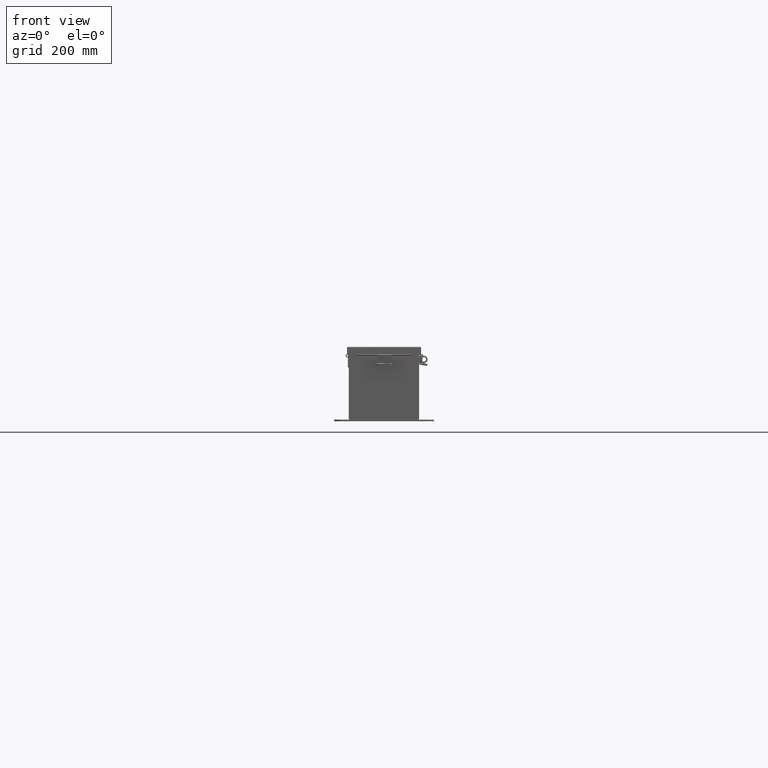
[diagram: clean part render]
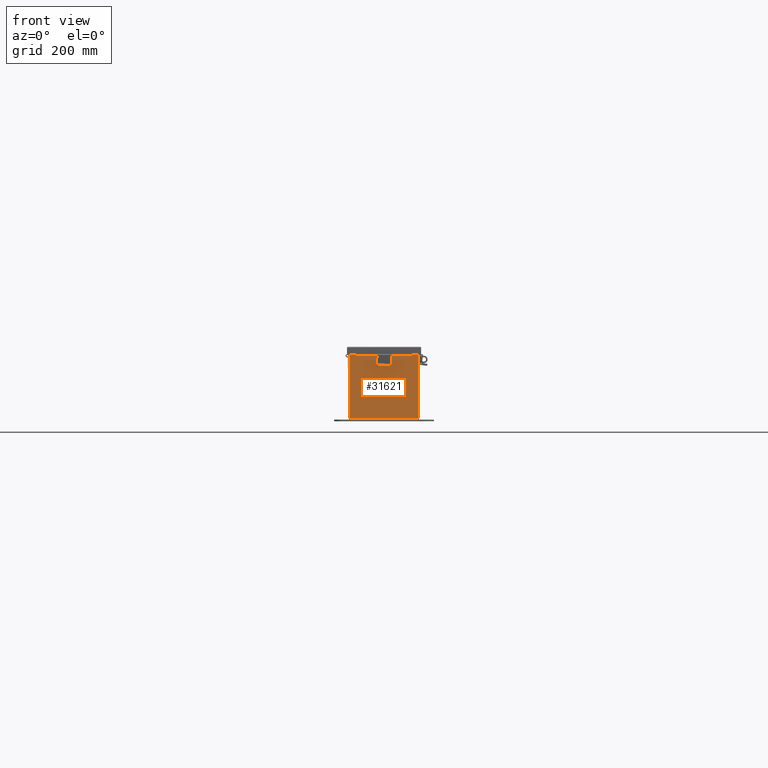
[diagram: same view with one face highlighted and labeled with its STEP entity id]
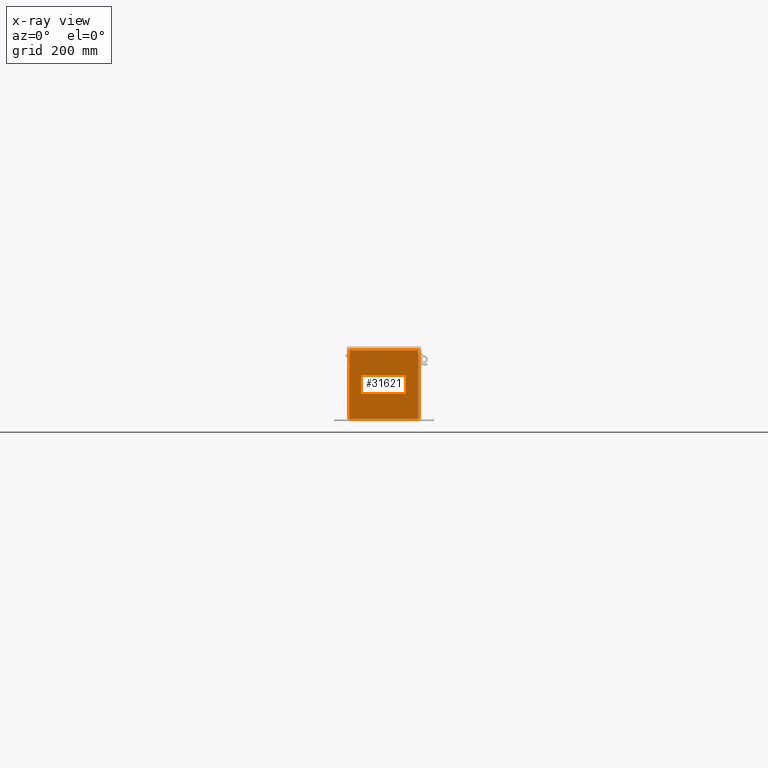
[diagram: x-ray of the same camera — body ghosted, the highlighted face saturated]
A machine part, front view. The second image highlights one B-rep face of the part: STEP entity #31621.
The next image is the same camera in x-ray: the body ghosted, the highlighted face saturated — about 0% of this face is hidden behind the body in this view.
In plain terms, the highlighted planar face has unit normal (-0, 1, -0).
Its self-contained STEP definition (entity closure, byte-faithful):
#105 = DIRECTION ( 'NONE',  ( 0.0000000000000000000, 0.0000000000000000000, -1.000000000000000000 ) ) ;
#489 = DIRECTION ( 'NONE',  ( 1.000000000000000000, 1.230560758958866800E-030, -0.0000000000000000000 ) ) ;
#1025 = LINE ( 'NONE', #30534, #16711 ) ;
#1444 = DIRECTION ( 'NONE',  ( -1.000000000000000000, -1.230560758958866800E-030, 0.0000000000000000000 ) ) ;
#1873 = CARTESIAN_POINT ( 'NONE',  ( 2.619649999999976500, 0.0000000000000000000, -2.895758873284118700E-014 ) ) ;
#2327 = DIRECTION ( 'NONE',  ( -1.230560758958866800E-030, -1.000000000000000000, -0.0000000000000000000 ) ) ;
#3090 = VERTEX_POINT ( 'NONE', #13459 ) ;
#3721 = VERTEX_POINT ( 'NONE', #21673 ) ;
#4574 = LINE ( 'NONE', #18095, #21306 ) ;
#5140 = CARTESIAN_POINT ( 'NONE',  ( 2.619650000000007600, 8.741913579725642300E-014, 2.925300000000001300 ) ) ;
#5399 = DIRECTION ( 'NONE',  ( 1.000000000000000000, 1.230560758958866800E-030, 0.0000000000000000000 ) ) ;
#5593 = CARTESIAN_POINT ( 'NONE',  ( -2.619649999999992500, 8.741913579725642300E-014, 2.925299999999999100 ) ) ;
#5642 = LINE ( 'NONE', #22097, #13494 ) ;
#5880 = EDGE_CURVE ( 'NONE', #32629, #25516, #28270, .T. ) ;
#6480 = CARTESIAN_POINT ( 'NONE',  ( 2.582300000000007600, 0.0000000000000000000, -1.092739197465705300E-014 ) ) ;
#7765 = ORIENTED_EDGE ( 'NONE', *, *, #16394, .T. ) ;
#8924 = CARTESIAN_POINT ( 'NONE',  ( 2.925299999999996900, 8.741913579725642300E-014, -2.925300000000011600 ) ) ;
#9169 = ORIENTED_EDGE ( 'NONE', *, *, #24537, .T. ) ;
#10699 = ORIENTED_EDGE ( 'NONE', *, *, #12179, .F. ) ;
#10935 = VERTEX_POINT ( 'NONE', #13122 ) ;
#11571 = VECTOR ( 'NONE', #489, 39.37007874015748100 ) ;
#12179 = EDGE_CURVE ( 'NONE', #22122, #10935, #40175, .T. ) ;
#12230 = PLANE ( 'NONE',  #20106 ) ;
#12293 = VECTOR ( 'NONE', #43339, 39.37007874015748100 ) ;
#13122 = CARTESIAN_POINT ( 'NONE',  ( -2.582299999999992500, 8.741913579725642300E-014, 2.874949999999998800 ) ) ;
#13459 = CARTESIAN_POINT ( 'NONE',  ( -2.619649999999992500, 8.741913579725642300E-014, 2.874949999999997900 ) ) ;
#13494 = VECTOR ( 'NONE', #5399, 39.37007874015748100 ) ;
#13781 = DIRECTION ( 'NONE',  ( 0.0000000000000000000, 0.0000000000000000000, 1.000000000000000000 ) ) ;
#14990 = ORIENTED_EDGE ( 'NONE', *, *, #23979, .T. ) ;
#15096 = LINE ( 'NONE', #1873, #24024 ) ;
#15639 = EDGE_CURVE ( 'NONE', #26326, #33950, #23633, .T. ) ;
#16290 = CARTESIAN_POINT ( 'NONE',  ( 2.600975000000007600, 8.741913579725642300E-014, 2.874949999999998800 ) ) ;
#16361 = VECTOR ( 'NONE', #41230, 39.37007874015748100 ) ;
#16394 = EDGE_CURVE ( 'NONE', #22122, #25221, #30485, .T. ) ;
#16711 = VECTOR ( 'NONE', #13781, 39.37007874015748100 ) ;
#17808 = CARTESIAN_POINT ( 'NONE',  ( 2.925300000000007600, 8.741913579725642300E-014, 2.925300000000000000 ) ) ;
#18095 = CARTESIAN_POINT ( 'NONE',  ( -2.925300000000003600, 0.0000000000000000000, -2.925300000000000500 ) ) ;
#18690 = CIRCLE ( 'NONE', #20870, 0.01867500000000003900 ) ;
#18989 = CARTESIAN_POINT ( 'NONE',  ( 0.0000000000000000000, 0.0000000000000000000, 0.0000000000000000000 ) ) ;
#19344 = VECTOR ( 'NONE', #39545, 39.37007874015748100 ) ;
#19667 = DIRECTION ( 'NONE',  ( 0.0000000000000000000, 0.0000000000000000000, -1.000000000000000000 ) ) ;
#20076 = EDGE_CURVE ( 'NONE', #33950, #25221, #22258, .T. ) ;
#20106 = AXIS2_PLACEMENT_3D ( 'NONE', #18989, #2327, #25730 ) ;
#20135 = DIRECTION ( 'NONE',  ( 1.230560758958866800E-030, 1.000000000000000000, -0.0000000000000000000 ) ) ;
#20517 = CARTESIAN_POINT ( 'NONE',  ( -2.582299999999992500, 8.741913579725642300E-014, 2.912299999999998800 ) ) ;
#20870 = AXIS2_PLACEMENT_3D ( 'NONE', #40173, #20135, #105 ) ;
#21013 = ORIENTED_EDGE ( 'NONE', *, *, #5880, .T. ) ;
#21306 = VECTOR ( 'NONE', #1444, 39.37007874015748100 ) ;
#21376 = EDGE_LOOP ( 'NONE', ( #43291, #21874, #10699, #7765, #33607, #34084, #39211, #21013, #21766, #24886, #14990, #9169 ) ) ;
#21673 = CARTESIAN_POINT ( 'NONE',  ( -2.925300000000003600, 0.0000000000000000000, -2.925300000000000500 ) ) ;
#21766 = ORIENTED_EDGE ( 'NONE', *, *, #31419, .T. ) ;
#21869 = DIRECTION ( 'NONE',  ( -1.085143195099989400E-014, 0.0000000000000000000, -1.000000000000000000 ) ) ;
#21874 = ORIENTED_EDGE ( 'NONE', *, *, #29095, .F. ) ;
#22097 = CARTESIAN_POINT ( 'NONE',  ( -2.925299999999992500, 0.0000000000000000000, 2.925300000000000000 ) ) ;
#22122 = VERTEX_POINT ( 'NONE', #33294 ) ;
#22258 = LINE ( 'NONE', #6480, #12293 ) ;
#22544 = VERTEX_POINT ( 'NONE', #8924 ) ;
#22561 = DIRECTION ( 'NONE',  ( 0.0000000000000000000, 0.0000000000000000000, 1.000000000000000000 ) ) ;
#22684 = VERTEX_POINT ( 'NONE', #36442 ) ;
#23633 = CIRCLE ( 'NONE', #29953, 0.01867500000000003900 ) ;
#23979 = EDGE_CURVE ( 'NONE', #3721, #22684, #1025, .T. ) ;
#24024 = VECTOR ( 'NONE', #21869, 39.37007874015748100 ) ;
#24537 = EDGE_CURVE ( 'NONE', #22684, #37604, #5642, .T. ) ;
#24886 = ORIENTED_EDGE ( 'NONE', *, *, #25027, .T. ) ;
#25027 = EDGE_CURVE ( 'NONE', #22544, #3721, #4574, .T. ) ;
#25221 = VERTEX_POINT ( 'NONE', #25869 ) ;
#25298 = LINE ( 'NONE', #17808, #16361 ) ;
#25516 = VERTEX_POINT ( 'NONE', #41306 ) ;
#25730 = DIRECTION ( 'NONE',  ( 0.0000000000000000000, 0.0000000000000000000, -1.000000000000000000 ) ) ;
#25801 = FACE_OUTER_BOUND ( 'NONE', #21376, .T. ) ;
#25869 = CARTESIAN_POINT ( 'NONE',  ( 2.582300000000007600, 8.741913579725642300E-014, 2.912299999999998800 ) ) ;
#26326 = VERTEX_POINT ( 'NONE', #35436 ) ;
#26670 = CARTESIAN_POINT ( 'NONE',  ( -2.582299999999992500, 0.0000000000000000000, 0.0000000000000000000 ) ) ;
#28270 = LINE ( 'NONE', #36182, #19344 ) ;
#29095 = EDGE_CURVE ( 'NONE', #10935, #3090, #18690, .T. ) ;
#29595 = EDGE_CURVE ( 'NONE', #3090, #37604, #34352, .T. ) ;
#29953 = AXIS2_PLACEMENT_3D ( 'NONE', #16290, #39707, #19667 ) ;
#30485 = LINE ( 'NONE', #20517, #11571 ) ;
#30534 = CARTESIAN_POINT ( 'NONE',  ( -2.925299999999992500, 0.0000000000000000000, 2.925300000000000000 ) ) ;
#31331 = VECTOR ( 'NONE', #36909, 39.37007874015748100 ) ;
#31419 = EDGE_CURVE ( 'NONE', #25516, #22544, #25298, .T. ) ;
#31621 = ADVANCED_FACE ( 'NONE', ( #25801 ), #12230, .F. ) ;
#32629 = VERTEX_POINT ( 'NONE', #5140 ) ;
#33294 = CARTESIAN_POINT ( 'NONE',  ( -2.582299999999992500, 8.741913579725642300E-014, 2.912299999999998800 ) ) ;
#33607 = ORIENTED_EDGE ( 'NONE', *, *, #20076, .F. ) ;
#33950 = VERTEX_POINT ( 'NONE', #40203 ) ;
#34084 = ORIENTED_EDGE ( 'NONE', *, *, #15639, .F. ) ;
#34352 = LINE ( 'NONE', #42576, #42156 ) ;
#35436 = CARTESIAN_POINT ( 'NONE',  ( 2.619650000000007600, 8.741913579725642300E-014, 2.874949999999999700 ) ) ;
#36182 = CARTESIAN_POINT ( 'NONE',  ( -2.925299999999992500, 0.0000000000000000000, 2.925300000000000000 ) ) ;
#36442 = CARTESIAN_POINT ( 'NONE',  ( -2.925299999999992500, 0.0000000000000000000, 2.925300000000000000 ) ) ;
#36909 = DIRECTION ( 'NONE',  ( 0.0000000000000000000, 0.0000000000000000000, -1.000000000000000000 ) ) ;
#37604 = VERTEX_POINT ( 'NONE', #5593 ) ;
#39211 = ORIENTED_EDGE ( 'NONE', *, *, #40022, .F. ) ;
#39545 = DIRECTION ( 'NONE',  ( 1.000000000000000000, 1.230560758958866800E-030, 0.0000000000000000000 ) ) ;
#39707 = DIRECTION ( 'NONE',  ( 1.230560758958866800E-030, 1.000000000000000000, -0.0000000000000000000 ) ) ;
#40022 = EDGE_CURVE ( 'NONE', #32629, #26326, #15096, .T. ) ;
#40173 = CARTESIAN_POINT ( 'NONE',  ( -2.600974999999992500, 8.741913579725642300E-014, 2.874949999999998800 ) ) ;
#40175 = LINE ( 'NONE', #26670, #31331 ) ;
#40203 = CARTESIAN_POINT ( 'NONE',  ( 2.582300000000007600, 8.741913579725642300E-014, 2.874949999999998800 ) ) ;
#41230 = DIRECTION ( 'NONE',  ( 0.0000000000000000000, 0.0000000000000000000, -1.000000000000000000 ) ) ;
#41306 = CARTESIAN_POINT ( 'NONE',  ( 2.925300000000007600, 8.741913579725642300E-014, 2.925300000000000000 ) ) ;
#42156 = VECTOR ( 'NONE', #22561, 39.37007874015748100 ) ;
#42576 = CARTESIAN_POINT ( 'NONE',  ( -2.619649999999992500, 0.0000000000000000000, -1.092739197465705300E-014 ) ) ;
#43291 = ORIENTED_EDGE ( 'NONE', *, *, #29595, .F. ) ;
#43339 = DIRECTION ( 'NONE',  ( 0.0000000000000000000, 0.0000000000000000000, 1.000000000000000000 ) ) ;